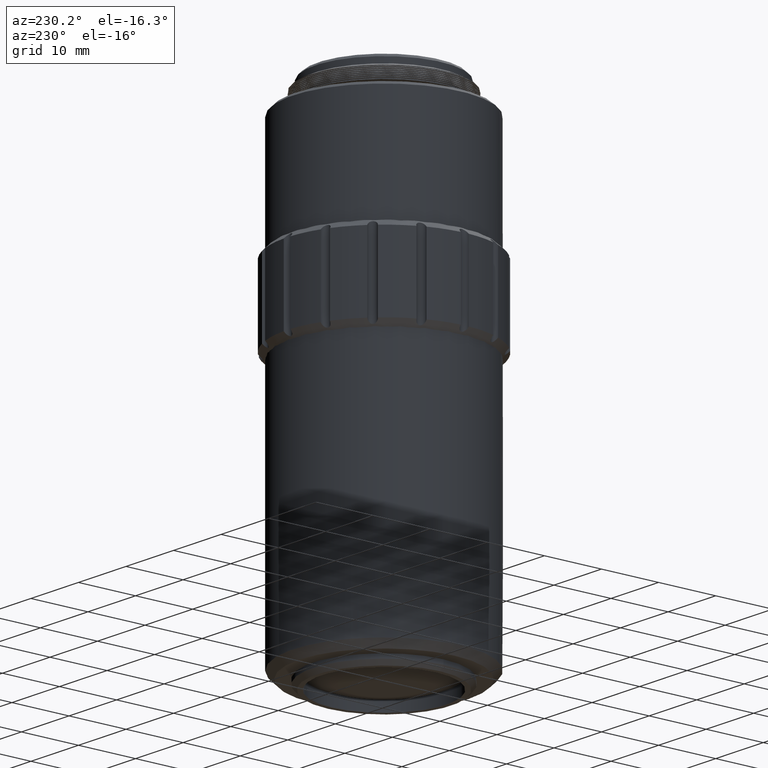
[diagram: clean part render]
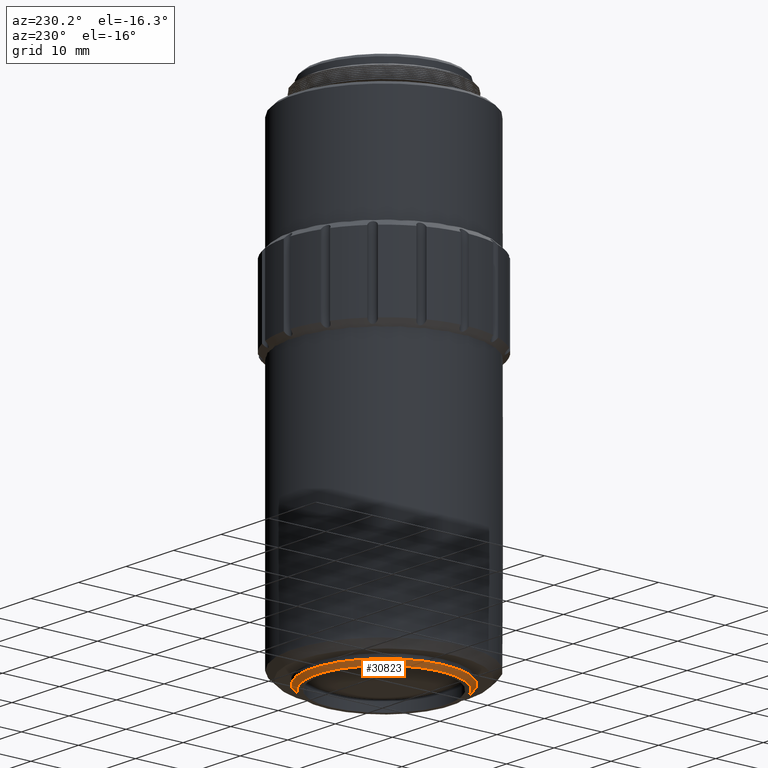
[diagram: same view with one face highlighted and labeled with its STEP entity id]
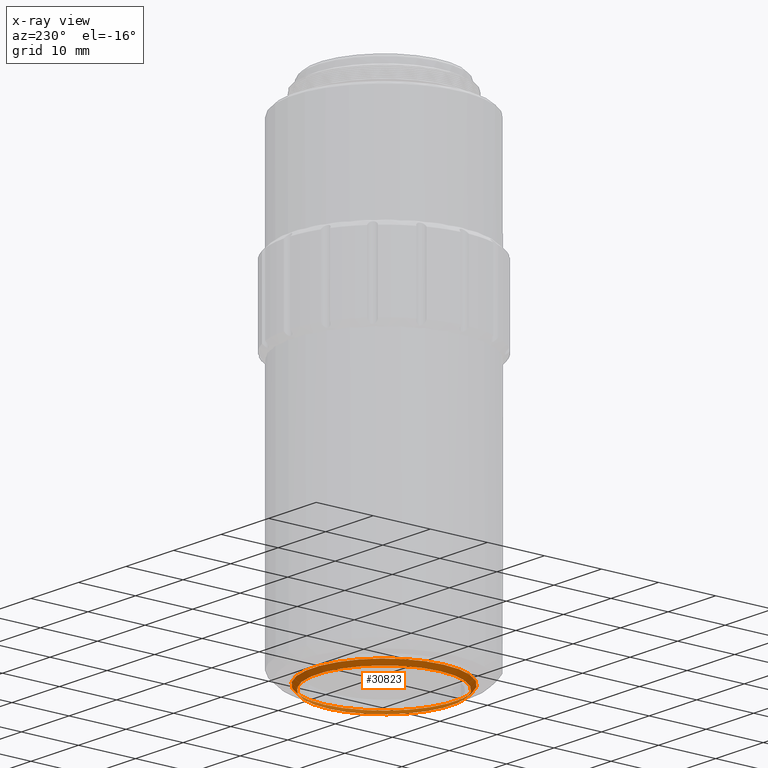
[diagram: x-ray of the same camera — body ghosted, the highlighted face saturated]
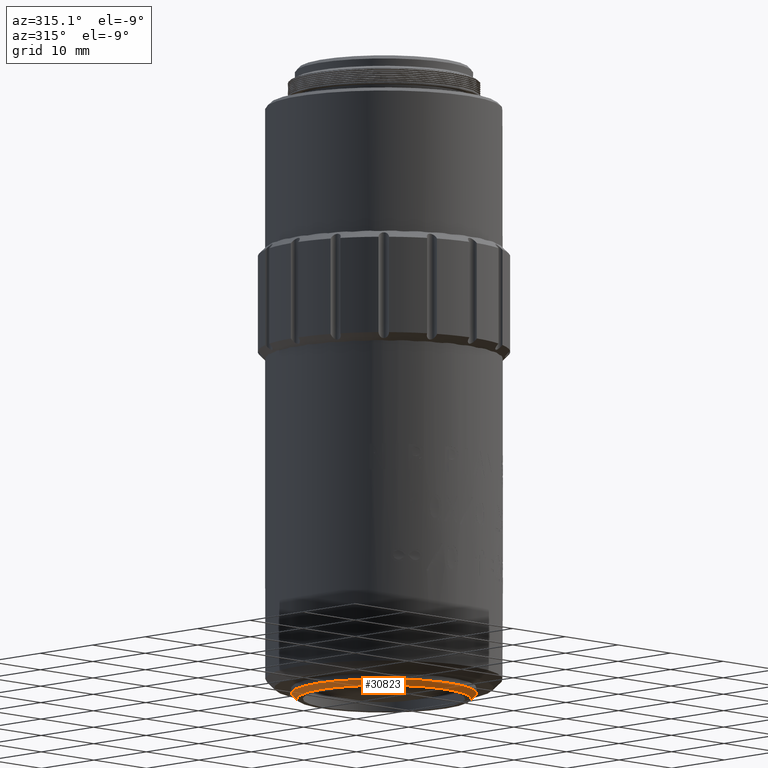
[diagram: same view with one face highlighted and labeled with its STEP entity id]
A machine part, auxiliary view. The second image highlights one B-rep face of the part: STEP entity #30823.
The next image is the same camera in x-ray: the body ghosted, the highlighted face saturated — about 0% of this face is hidden behind the body in this view.
A second angle (auxiliary view) of the same face is appended — the face is thin or edge-on in the first view.
In plain terms, the highlighted conical surface has half-angle 45 deg.
Its self-contained STEP definition (entity closure, byte-faithful):
#207 = DIRECTION ( 'NONE',  ( -1.000000000000000000, 0.000000000000000000, 0.000000000000000000 ) ) ;
#2698 = DIRECTION ( 'NONE',  ( 1.000000000000000000, 0.000000000000000000, 0.000000000000000000 ) ) ;
#4147 = EDGE_CURVE ( 'NONE', #12510, #12510, #5519, .T. ) ;
#4267 = ORIENTED_EDGE ( 'NONE', *, *, #4147, .F. ) ;
#4935 = CARTESIAN_POINT ( 'NONE',  ( -135.1630341068842540, 22.01530283243863195, -53.05774392209306001 ) ) ;
#5079 = CARTESIAN_POINT ( 'NONE',  ( -122.6630341068842540, 22.01530283243863195, -53.80774392209306001 ) ) ;
#5519 = CIRCLE ( 'NONE', #11063, 11.75000000000001066 ) ;
#7610 = FACE_OUTER_BOUND ( 'NONE', #8549, .T. ) ;
#8549 = EDGE_LOOP ( 'NONE', ( #14718 ) ) ;
#8866 = CONICAL_SURFACE ( 'NONE', #12902, 11.75000000000001066, 0.7853981633974437271 ) ;
#8974 = DIRECTION ( 'NONE',  ( 0.000000000000000000, 0.000000000000000000, 1.000000000000000000 ) ) ;
#9971 = DIRECTION ( 'NONE',  ( 0.000000000000000000, 0.000000000000000000, 1.000000000000000000 ) ) ;
#10137 = CARTESIAN_POINT ( 'NONE',  ( -134.4130341068842540, 22.01530283243863195, -53.80774392209306001 ) ) ;
#11063 = AXIS2_PLACEMENT_3D ( 'NONE', #19322, #28672, #207 ) ;
#11927 = AXIS2_PLACEMENT_3D ( 'NONE', #25707, #8974, #23338 ) ;
#12510 = VERTEX_POINT ( 'NONE', #10137 ) ;
#12902 = AXIS2_PLACEMENT_3D ( 'NONE', #5079, #9971, #2698 ) ;
#14591 = EDGE_CURVE ( 'NONE', #29410, #29410, #16615, .T. ) ;
#14718 = ORIENTED_EDGE ( 'NONE', *, *, #14591, .F. ) ;
#15654 = EDGE_LOOP ( 'NONE', ( #4267 ) ) ;
#16615 = CIRCLE ( 'NONE', #11927, 12.50000000000001066 ) ;
#19322 = CARTESIAN_POINT ( 'NONE',  ( -122.6630341068842540, 22.01530283243863195, -53.80774392209306001 ) ) ;
#19905 = FACE_BOUND ( 'NONE', #15654, .T. ) ;
#23338 = DIRECTION ( 'NONE',  ( -1.000000000000000000, 0.000000000000000000, 0.000000000000000000 ) ) ;
#25707 = CARTESIAN_POINT ( 'NONE',  ( -122.6630341068842540, 22.01530283243863195, -53.05774392209306001 ) ) ;
#28672 = DIRECTION ( 'NONE',  ( 0.000000000000000000, 0.000000000000000000, -1.000000000000000000 ) ) ;
#29410 = VERTEX_POINT ( 'NONE', #4935 ) ;
#30823 = ADVANCED_FACE ( 'NONE', ( #19905, #7610 ), #8866, .T. ) ;